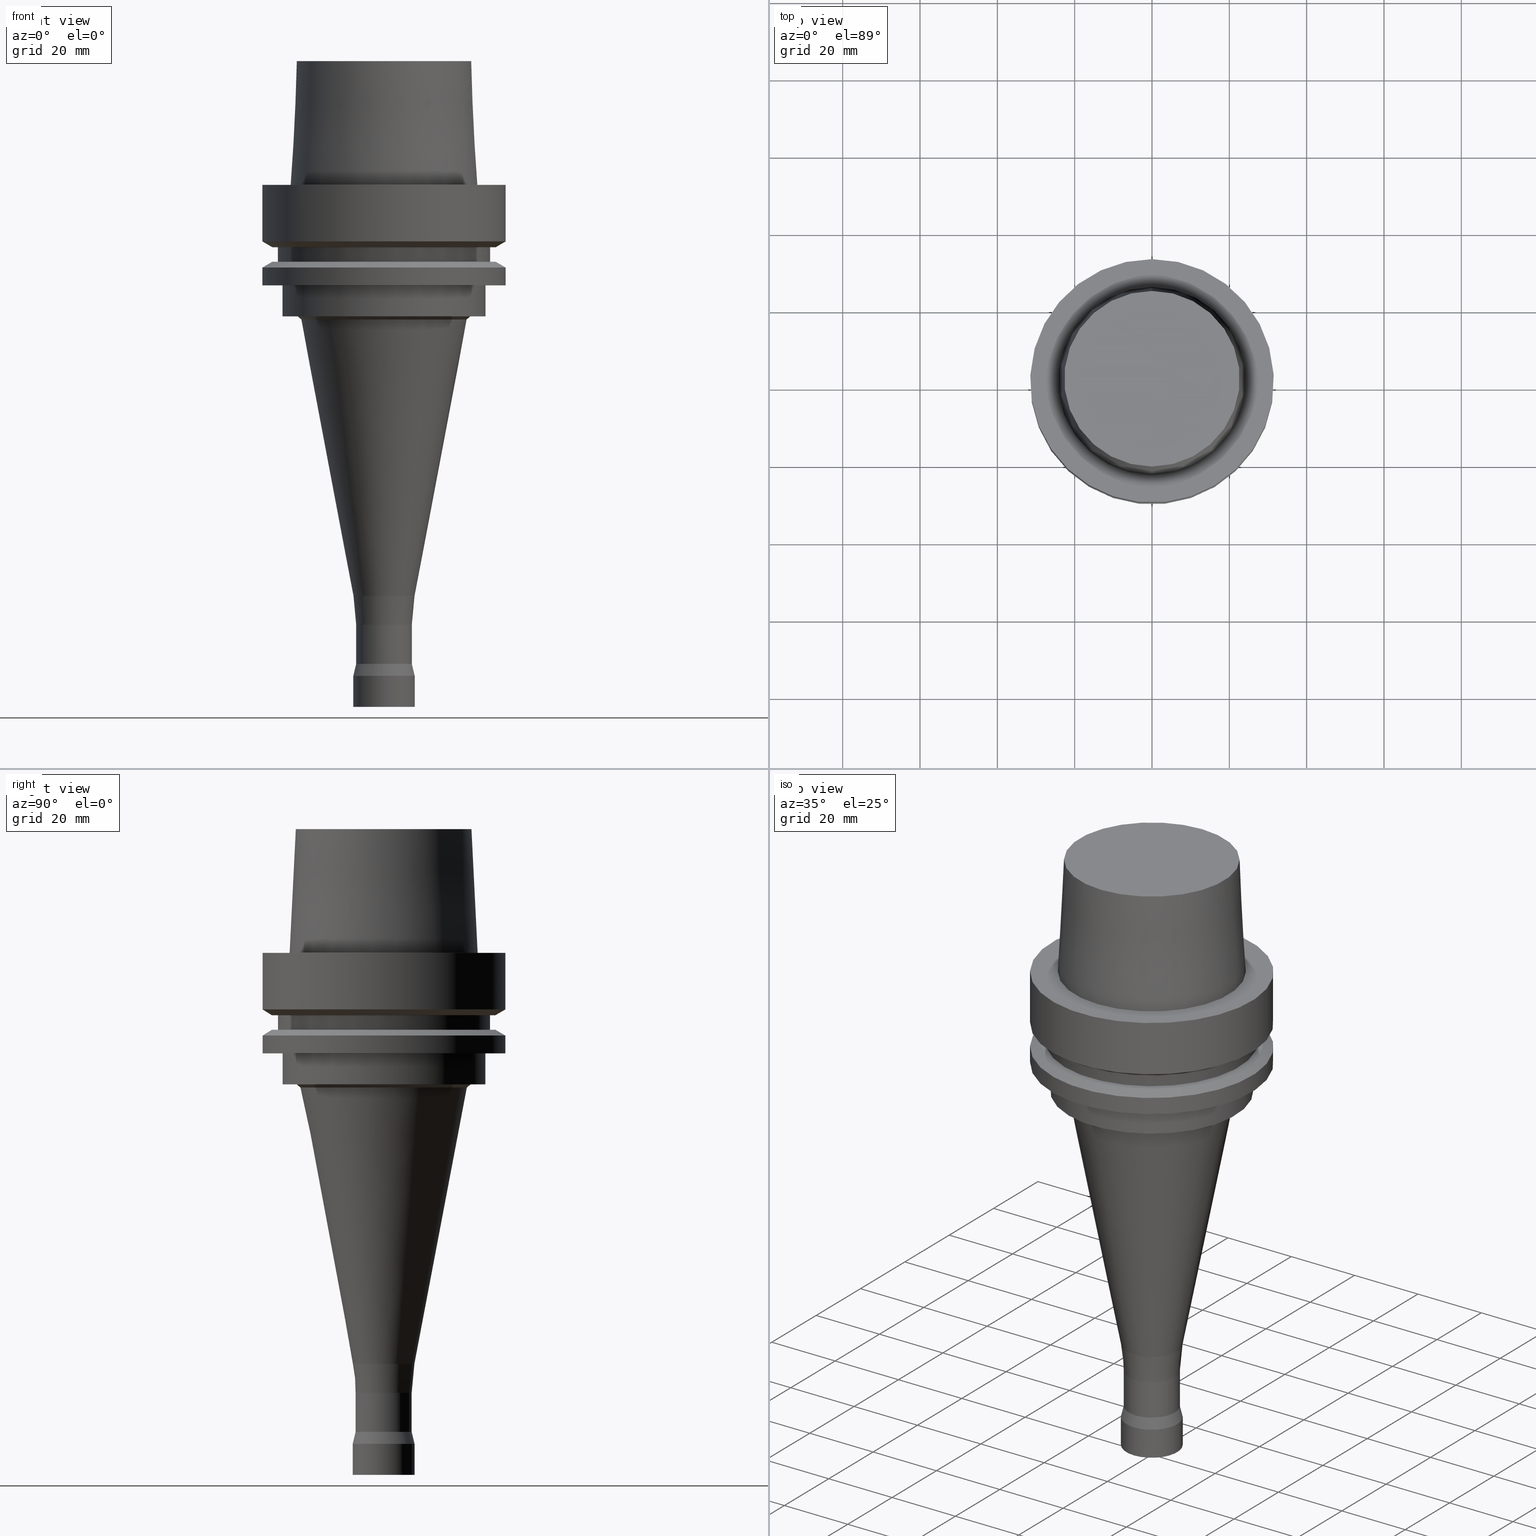
[diagram: canonical four-view strip — front | top / right | iso, engineering-drawing reading convention]
A machine part, canonical four-view strip (front | top / right | iso — engineering-drawing reading convention). The complete STEP part file that produces these views, byte-faithful:
ISO-10303-21;
HEADER;
FILE_DESCRIPTION((''),'1');
FILE_NAME('//Big_tech03/bigt/Translate/21_\X2\8F2A90ED7DDA\X0\-DXF/71_\X2\5207524A5DE55177\X0\/01_\X2\30A830F330C930DF30EB52A05DE5\X0\/02_\X2\30D530EB30AB30C330C830DF30EB\X0\ FCR/HSK/A 63/HSK-A63-FCR16082-135.stp','2012-05-31T01:49:52',(''),(''),'Spatial Interop R18','Kubotek KeyCreator V8.5.1 (14335)',' ');
FILE_SCHEMA(('CONFIG_CONTROL_DESIGN'));
ENDSEC;
DATA;
#1=DESIGN_CONTEXT('',#27,'design');
#2=APPLICATION_PROTOCOL_DEFINITION('INTERNATIONAL STANDARD','config_control_design',1994,#27);
#3=PRODUCT_CATEGORY_RELATIONSHIP('NONE','NONE',#28,#29);
#4=DATE_AND_TIME(#30,#31);
#5=DATE_TIME_ROLE('creation_date');
#6=DATE_TIME_ROLE('classification_date');
#7=PERSON_AND_ORGANIZATION_ROLE('creator');
#8=PERSON_AND_ORGANIZATION_ROLE('design_supplier');
#9=PERSON_AND_ORGANIZATION_ROLE('classification_officer');
#10=PERSON_AND_ORGANIZATION_ROLE('design_owner');
#11=APPROVAL_PERSON_ORGANIZATION(#32,#33,#34);
#12=APPROVAL_DATE_TIME(#4,#33);
#13=CC_DESIGN_APPROVAL(#33,(#35,#36,#37));
#14=CC_DESIGN_DATE_AND_TIME_ASSIGNMENT(#4,#5,(#37));
#15=CC_DESIGN_DATE_AND_TIME_ASSIGNMENT(#4,#6,(#35));
#16=CC_DESIGN_PERSON_AND_ORGANIZATION_ASSIGNMENT(#32,#10,(#38));
#17=CC_DESIGN_PERSON_AND_ORGANIZATION_ASSIGNMENT(#32,#7,(#37));
#18=CC_DESIGN_PERSON_AND_ORGANIZATION_ASSIGNMENT(#32,#7,(#36));
#19=CC_DESIGN_PERSON_AND_ORGANIZATION_ASSIGNMENT(#32,#8,(#36));
#20=CC_DESIGN_SECURITY_CLASSIFICATION(#35,(#36));
#21=CC_DESIGN_PERSON_AND_ORGANIZATION_ASSIGNMENT(#32,#9,(#35));
#22=SHAPE_DEFINITION_REPRESENTATION(#39,#40);
#23= (GEOMETRIC_REPRESENTATION_CONTEXT(3)GLOBAL_UNCERTAINTY_ASSIGNED_CONTEXT((#43))GLOBAL_UNIT_ASSIGNED_CONTEXT((#45,#46,#47))REPRESENTATION_CONTEXT('NONE','WORKSPACE'));
#27=APPLICATION_CONTEXT('CONFIGURATION CONTROLLED 3D DESIGNS OF MECHANICAL PARTS AND ASSEMBLIES');
#28=PRODUCT_CATEGORY('part','NONE');
#29=PRODUCT_RELATED_PRODUCT_CATEGORY('detail',' ',(#38));
#30=CALENDAR_DATE(2012,31,4);
#31=LOCAL_TIME(10,49,52.0,#49);
#32=PERSON_AND_ORGANIZATION(#50,#51);
#33=APPROVAL(#52,'SOLID MODEL');
#34=APPROVAL_ROLE('APPROVED');
#35=SECURITY_CLASSIFICATION('','',#53);
#36=PRODUCT_DEFINITION_FORMATION_WITH_SPECIFIED_SOURCE(' ','NONE',#38,.NOT_KNOWN.);
#37=PRODUCT_DEFINITION('NONE','NONE',#36,#1);
#38=PRODUCT('1','1','PART-1-DESC',(#54));
#39=PRODUCT_DEFINITION_SHAPE('NONE','NONE',#37);
#40=ADVANCED_BREP_SHAPE_REPRESENTATION('1',(#55,#56),#23);
#43=UNCERTAINTY_MEASURE_WITH_UNIT(LENGTH_MEASURE(1.0E-006),#45,'','');
#45= (CONVERSION_BASED_UNIT('MILLIMETRE',#59)LENGTH_UNIT()NAMED_UNIT(#62));
#46= (NAMED_UNIT(#64)PLANE_ANGLE_UNIT()SI_UNIT($,.RADIAN.));
#47= (NAMED_UNIT(#64)SOLID_ANGLE_UNIT()SI_UNIT($,.STERADIAN.));
#49=COORDINATED_UNIVERSAL_TIME_OFFSET(9,0,.AHEAD.);
#50=PERSON('','UNSPECIFIED',$,$,$,$);
#51=ORGANIZATION('UNSPECIFIED','UNSPECIFIED','UNSPECIFIED');
#52=APPROVAL_STATUS('approved');
#53=SECURITY_CLASSIFICATION_LEVEL('unclassified');
#54=MECHANICAL_CONTEXT('',#27,'mechanical');
#55=MANIFOLD_SOLID_BREP('1',#70);
#56=AXIS2_PLACEMENT_3D('',#71,#72,#73);
#59=LENGTH_MEASURE_WITH_UNIT(LENGTH_MEASURE(1.0),#74);
#62=DIMENSIONAL_EXPONENTS(1.0,0.0,0.0,0.0,0.0,0.0,0.0);
#64=DIMENSIONAL_EXPONENTS(0.0,0.0,0.0,0.0,0.0,0.0,0.0);
#70=CLOSED_SHELL('',(#75,#76,#77,#78,#79,#80,#81,#82,#83,#84,#85,#86,#87,#88,#89,#90,#91,#92,#93,#94));
#71=CARTESIAN_POINT('',(0.0,0.0,0.0));
#72=DIRECTION('',(0.0,0.0,1.0));
#73=DIRECTION('',(1.0,0.0,0.0));
#74= (NAMED_UNIT(#62)LENGTH_UNIT()SI_UNIT(.MILLI.,.METRE.));
#75=ADVANCED_FACE('',(#96),#97,.T.);
#76=ADVANCED_FACE('',(#98,#99),#100,.T.);
#77=ADVANCED_FACE('',(#101,#102),#103,.T.);
#78=ADVANCED_FACE('',(#104,#105),#106,.T.);
#79=ADVANCED_FACE('',(#107,#108),#109,.T.);
#80=ADVANCED_FACE('',(#110),#111,.T.);
#81=ADVANCED_FACE('',(#112,#113),#114,.T.);
#82=ADVANCED_FACE('',(#115,#116),#117,.T.);
#83=ADVANCED_FACE('',(#118,#119),#120,.T.);
#84=ADVANCED_FACE('',(#121,#122),#123,.T.);
#85=ADVANCED_FACE('',(#124,#125),#126,.T.);
#86=ADVANCED_FACE('',(#127,#128),#129,.T.);
#87=ADVANCED_FACE('',(#130,#131),#132,.T.);
#88=ADVANCED_FACE('',(#133,#134),#135,.T.);
#89=ADVANCED_FACE('',(#136,#137),#138,.T.);
#90=ADVANCED_FACE('',(#139,#140),#141,.T.);
#91=ADVANCED_FACE('',(#142,#143),#144,.T.);
#92=ADVANCED_FACE('',(#145,#146),#147,.T.);
#93=ADVANCED_FACE('',(#148,#149),#150,.T.);
#94=ADVANCED_FACE('',(#151,#152),#153,.T.);
#96=FACE_OUTER_BOUND('',#154,.T.);
#97=PLANE('',#155);
#98=FACE_BOUND('',#156,.T.);
#99=FACE_BOUND('',#157,.T.);
#100=CYLINDRICAL_SURFACE('',#158,8.0);
#101=FACE_BOUND('',#159,.T.);
#102=FACE_BOUND('',#160,.T.);
#103=CONICAL_SURFACE('',#161,7.60065411,0.0937661424706096);
#104=FACE_BOUND('',#162,.T.);
#105=FACE_BOUND('',#163,.T.);
#106=CYLINDRICAL_SURFACE('',#164,7.25);
#107=FACE_BOUND('',#165,.T.);
#108=FACE_BOUND('',#166,.T.);
#109=CONICAL_SURFACE('',#167,7.625,0.236426045442767);
#110=FACE_OUTER_BOUND('',#168,.T.);
#111=PLANE('',#169);
#112=FACE_BOUND('',#170,.T.);
#113=FACE_BOUND('',#171,.T.);
#114=CONICAL_SURFACE('',#172,23.5149999985447,0.0499583958256321);
#115=FACE_OUTER_BOUND('',#173,.T.);
#116=FACE_BOUND('',#174,.T.);
#117=PLANE('',#175);
#118=FACE_BOUND('',#176,.T.);
#119=FACE_BOUND('',#177,.T.);
#120=CYLINDRICAL_SURFACE('',#178,31.5);
#121=FACE_BOUND('',#179,.T.);
#122=FACE_BOUND('',#180,.T.);
#123=CONICAL_SURFACE('',#181,30.19879763,1.04719755326565);
#124=FACE_BOUND('',#182,.T.);
#125=FACE_OUTER_BOUND('',#183,.T.);
#126=PLANE('',#184);
#127=FACE_BOUND('',#185,.T.);
#128=FACE_BOUND('',#186,.T.);
#129=CYLINDRICAL_SURFACE('',#187,27.5);
#130=FACE_OUTER_BOUND('',#188,.T.);
#131=FACE_BOUND('',#189,.T.);
#132=PLANE('',#190);
#133=FACE_BOUND('',#191,.T.);
#134=FACE_BOUND('',#192,.T.);
#135=CONICAL_SURFACE('',#193,30.19879763,1.04719755326565);
#136=FACE_BOUND('',#194,.T.);
#137=FACE_BOUND('',#195,.T.);
#138=CYLINDRICAL_SURFACE('',#196,31.5);
#139=FACE_BOUND('',#197,.T.);
#140=FACE_OUTER_BOUND('',#198,.T.);
#141=PLANE('',#199);
#142=FACE_BOUND('',#200,.T.);
#143=FACE_BOUND('',#201,.T.);
#144=CYLINDRICAL_SURFACE('',#202,26.3);
#145=FACE_BOUND('',#203,.T.);
#146=FACE_OUTER_BOUND('',#204,.T.);
#147=PLANE('',#205);
#148=FACE_BOUND('',#206,.T.);
#149=FACE_BOUND('',#207,.T.);
#150=CONICAL_SURFACE('',#208,22.008766355,0.879164306144341);
#151=FACE_BOUND('',#209,.T.);
#152=FACE_BOUND('',#210,.T.);
#153=CONICAL_SURFACE('',#211,14.734420465,0.187532285828949);
#154=EDGE_LOOP('',(#212));
#155=AXIS2_PLACEMENT_3D('',#213,#214,#215);
#156=EDGE_LOOP('',(#216));
#157=EDGE_LOOP('',(#217));
#158=AXIS2_PLACEMENT_3D('',#218,#219,#220);
#159=EDGE_LOOP('',(#221));
#160=EDGE_LOOP('',(#222));
#161=AXIS2_PLACEMENT_3D('',#223,#224,#225);
#162=EDGE_LOOP('',(#226));
#163=EDGE_LOOP('',(#227));
#164=AXIS2_PLACEMENT_3D('',#228,#229,#230);
#165=EDGE_LOOP('',(#231));
#166=EDGE_LOOP('',(#232));
#167=AXIS2_PLACEMENT_3D('',#233,#234,#235);
#168=EDGE_LOOP('',(#236));
#169=AXIS2_PLACEMENT_3D('',#237,#238,#239);
#170=EDGE_LOOP('',(#240));
#171=EDGE_LOOP('',(#241));
#172=AXIS2_PLACEMENT_3D('',#242,#243,#244);
#173=EDGE_LOOP('',(#245));
#174=EDGE_LOOP('',(#246));
#175=AXIS2_PLACEMENT_3D('',#247,#248,#249);
#176=EDGE_LOOP('',(#250));
#177=EDGE_LOOP('',(#251));
#178=AXIS2_PLACEMENT_3D('',#252,#253,#254);
#179=EDGE_LOOP('',(#255));
#180=EDGE_LOOP('',(#256));
#181=AXIS2_PLACEMENT_3D('',#257,#258,#259);
#182=EDGE_LOOP('',(#260));
#183=EDGE_LOOP('',(#261));
#184=AXIS2_PLACEMENT_3D('',#262,#263,#264);
#185=EDGE_LOOP('',(#265));
#186=EDGE_LOOP('',(#266));
#187=AXIS2_PLACEMENT_3D('',#267,#268,#269);
#188=EDGE_LOOP('',(#270));
#189=EDGE_LOOP('',(#271));
#190=AXIS2_PLACEMENT_3D('',#272,#273,#274);
#191=EDGE_LOOP('',(#275));
#192=EDGE_LOOP('',(#276));
#193=AXIS2_PLACEMENT_3D('',#277,#278,#279);
#194=EDGE_LOOP('',(#280));
#195=EDGE_LOOP('',(#281));
#196=AXIS2_PLACEMENT_3D('',#282,#283,#284);
#197=EDGE_LOOP('',(#285));
#198=EDGE_LOOP('',(#286));
#199=AXIS2_PLACEMENT_3D('',#287,#288,#289);
#200=EDGE_LOOP('',(#290));
#201=EDGE_LOOP('',(#291));
#202=AXIS2_PLACEMENT_3D('',#292,#293,#294);
#203=EDGE_LOOP('',(#295));
#204=EDGE_LOOP('',(#296));
#205=AXIS2_PLACEMENT_3D('',#297,#298,#299);
#206=EDGE_LOOP('',(#300));
#207=EDGE_LOOP('',(#301));
#208=AXIS2_PLACEMENT_3D('',#302,#303,#304);
#209=EDGE_LOOP('',(#305));
#210=EDGE_LOOP('',(#306));
#211=AXIS2_PLACEMENT_3D('',#307,#308,#309);
#212=ORIENTED_EDGE('',*,*,#310,.T.);
#213=CARTESIAN_POINT('',(8.26636589424463E-015,4.00000000000002,-135.0));
#214=DIRECTION('',(6.12323399573677E-017,1.22464679914735E-016,-1.0));
#215=DIRECTION('',(-1.23259516440783E-032,1.0,1.22464679914735E-016));
#216=ORIENTED_EDGE('',*,*,#310,.F.);
#217=ORIENTED_EDGE('',*,*,#311,.T.);
#218=CARTESIAN_POINT('',(8.02143653441516E-015,1.60428730688303E-014,-131.0));
#219=DIRECTION('',(-6.12323399573677E-017,-1.22464679914735E-016,1.0));
#220=DIRECTION('',(-1.23259516440783E-032,1.0,1.22464679914735E-016));
#221=ORIENTED_EDGE('',*,*,#312,.F.);
#222=ORIENTED_EDGE('',*,*,#313,.T.);
#223=CARTESIAN_POINT('',(6.7375766039747E-015,1.34751532079494E-014,-110.03297618));
#224=DIRECTION('',(-6.12323399573677E-017,-1.22464679914735E-016,1.0));
#225=DIRECTION('',(-1.23259516440783E-032,1.0,1.22464679914735E-016));
#226=ORIENTED_EDGE('',*,*,#314,.F.);
#227=ORIENTED_EDGE('',*,*,#312,.T.);
#228=CARTESIAN_POINT('',(7.27589498844439E-015,1.45517899768888E-014,-118.824382565));
#229=DIRECTION('',(-6.12323399573677E-017,-1.22464679914735E-016,1.0));
#230=DIRECTION('',(-1.23259516440783E-032,1.0,1.22464679914735E-016));
#231=ORIENTED_EDGE('',*,*,#311,.F.);
#232=ORIENTED_EDGE('',*,*,#314,.T.);
#233=CARTESIAN_POINT('',(7.68120175064703E-015,1.53624035012941E-014,-125.44354431));
#234=DIRECTION('',(6.12323399573677E-017,1.22464679914735E-016,-1.0));
#235=DIRECTION('',(-1.23259516440783E-032,1.0,1.22464679914735E-016));
#236=ORIENTED_EDGE('',*,*,#315,.F.);
#237=CARTESIAN_POINT('',(-1.95943487863577E-015,11.3574999984407,32.0));
#238=DIRECTION('',(-6.12323399573677E-017,-1.22464679914735E-016,1.0));
#239=DIRECTION('',(1.23259516440783E-032,-1.0,-1.22464679914735E-016));
#240=ORIENTED_EDGE('',*,*,#316,.F.);
#241=ORIENTED_EDGE('',*,*,#315,.T.);
#242=CARTESIAN_POINT('',(-9.79717439317883E-016,-1.95943487863576E-015,16.0));
#243=DIRECTION('',(6.12323399573676E-017,1.22464679914735E-016,-1.0));
#244=DIRECTION('',(-1.23259516440783E-032,1.0,1.22464679914735E-016));
#245=ORIENTED_EDGE('',*,*,#317,.F.);
#246=ORIENTED_EDGE('',*,*,#316,.T.);
#247=CARTESIAN_POINT('',(-3.43986495508397E-031,27.907500000104,3.41768305473321E-015));
#248=DIRECTION('',(-6.12323399573677E-017,-1.22464679914735E-016,1.0));
#249=DIRECTION('',(1.23259516440783E-032,-1.0,-1.22464679914735E-016));
#250=ORIENTED_EDGE('',*,*,#318,.F.);
#251=ORIENTED_EDGE('',*,*,#317,.T.);
#252=CARTESIAN_POINT('',(4.47684973986342E-016,8.95369947972685E-016,-7.311250465));
#253=DIRECTION('',(-6.12323399573677E-017,-1.22464679914735E-016,1.0));
#254=DIRECTION('',(-1.23259516440783E-032,1.0,1.22464679914735E-016));
#255=ORIENTED_EDGE('',*,*,#319,.F.);
#256=ORIENTED_EDGE('',*,*,#318,.T.);
#257=CARTESIAN_POINT('',(9.41370714892619E-016,1.88274142978524E-015,-15.373750465));
#258=DIRECTION('',(-6.12323399573677E-017,-1.22464679914735E-016,1.0));
#259=DIRECTION('',(-1.23259516440783E-032,1.0,1.22464679914735E-016));
#260=ORIENTED_EDGE('',*,*,#320,.F.);
#261=ORIENTED_EDGE('',*,*,#319,.T.);
#262=CARTESIAN_POINT('',(9.87371481812553E-016,28.19879763,-16.125));
#263=DIRECTION('',(6.12323399573677E-017,1.22464679914735E-016,-1.0));
#264=DIRECTION('',(-1.23259516440783E-032,1.0,1.22464679914735E-016));
#265=ORIENTED_EDGE('',*,*,#321,.F.);
#266=ORIENTED_EDGE('',*,*,#320,.T.);
#267=CARTESIAN_POINT('',(1.10218211923262E-015,2.20436423846524E-015,-18.0));
#268=DIRECTION('',(-6.12323399573677E-017,-1.22464679914735E-016,1.0));
#269=DIRECTION('',(-1.23259516440783E-032,1.0,1.22464679914735E-016));
#270=ORIENTED_EDGE('',*,*,#322,.F.);
#271=ORIENTED_EDGE('',*,*,#321,.T.);
#272=CARTESIAN_POINT('',(1.21699275665268E-015,28.19879763,-19.875));
#273=DIRECTION('',(-6.12323399573677E-017,-1.22464679914735E-016,1.0));
#274=DIRECTION('',(1.23259516440783E-032,-1.0,-1.22464679914735E-016));
#275=ORIENTED_EDGE('',*,*,#323,.F.);
#276=ORIENTED_EDGE('',*,*,#322,.T.);
#277=CARTESIAN_POINT('',(1.26299352357262E-015,2.52598704714523E-015,-20.626249535));
#278=DIRECTION('',(6.12323399573677E-017,1.22464679914735E-016,-1.0));
#279=DIRECTION('',(-1.23259516440783E-032,1.0,1.22464679914735E-016));
#280=ORIENTED_EDGE('',*,*,#324,.F.);
#281=ORIENTED_EDGE('',*,*,#323,.T.);
#282=CARTESIAN_POINT('',(1.45051756469206E-015,2.90103512938411E-015,-23.688749535));
#283=DIRECTION('',(-6.12323399573677E-017,-1.22464679914735E-016,1.0));
#284=DIRECTION('',(-1.23259516440783E-032,1.0,1.22464679914735E-016));
#285=ORIENTED_EDGE('',*,*,#325,.F.);
#286=ORIENTED_EDGE('',*,*,#324,.T.);
#287=CARTESIAN_POINT('',(1.59204083889156E-015,28.9,-26.0));
#288=DIRECTION('',(6.12323399573677E-017,1.22464679914735E-016,-1.0));
#289=DIRECTION('',(-1.23259516440783E-032,1.0,1.22464679914735E-016));
#290=ORIENTED_EDGE('',*,*,#326,.F.);
#291=ORIENTED_EDGE('',*,*,#325,.T.);
#292=CARTESIAN_POINT('',(1.83697019872103E-015,3.67394039744206E-015,-30.0));
#293=DIRECTION('',(-6.12323399573677E-017,-1.22464679914735E-016,1.0));
#294=DIRECTION('',(-1.23259516440783E-032,1.0,1.22464679914735E-016));
#295=ORIENTED_EDGE('',*,*,#327,.F.);
#296=ORIENTED_EDGE('',*,*,#326,.T.);
#297=CARTESIAN_POINT('',(2.0818995585505E-015,24.4,-34.0));
#298=DIRECTION('',(6.12323399573677E-017,1.22464679914735E-016,-1.0));
#299=DIRECTION('',(-1.23259516440783E-032,1.0,1.22464679914735E-016));
#300=ORIENTED_EDGE('',*,*,#328,.F.);
#301=ORIENTED_EDGE('',*,*,#327,.T.);
#302=CARTESIAN_POINT('',(2.10680780226689E-015,4.21361560453377E-015,-34.40678249));
#303=DIRECTION('',(-6.12323399573677E-017,-1.22464679914735E-016,1.0));
#304=DIRECTION('',(-1.23259516440783E-032,1.0,1.22464679914735E-016));
#305=ORIENTED_EDGE('',*,*,#313,.F.);
#306=ORIENTED_EDGE('',*,*,#328,.T.);
#307=CARTESIAN_POINT('',(4.32048780187613E-015,8.64097560375226E-015,-70.558920415));
#308=DIRECTION('',(-6.12323399573677E-017,-1.22464679914735E-016,1.0));
#309=DIRECTION('',(-1.23259516440783E-032,1.0,1.22464679914735E-016));
#310=EDGE_CURVE('',#329,#329,#330,.T.);
#311=EDGE_CURVE('',#331,#331,#332,.T.);
#312=EDGE_CURVE('',#333,#333,#334,.T.);
#313=EDGE_CURVE('',#335,#335,#336,.T.);
#314=EDGE_CURVE('',#337,#337,#338,.T.);
#315=EDGE_CURVE('',#339,#339,#340,.T.);
#316=EDGE_CURVE('',#341,#341,#342,.T.);
#317=EDGE_CURVE('',#343,#343,#344,.T.);
#318=EDGE_CURVE('',#345,#345,#346,.T.);
#319=EDGE_CURVE('',#347,#347,#348,.T.);
#320=EDGE_CURVE('',#349,#349,#350,.T.);
#321=EDGE_CURVE('',#351,#351,#352,.T.);
#322=EDGE_CURVE('',#353,#353,#354,.T.);
#323=EDGE_CURVE('',#355,#355,#356,.T.);
#324=EDGE_CURVE('',#357,#357,#358,.T.);
#325=EDGE_CURVE('',#359,#359,#360,.T.);
#326=EDGE_CURVE('',#361,#361,#362,.T.);
#327=EDGE_CURVE('',#363,#363,#364,.T.);
#328=EDGE_CURVE('',#365,#365,#366,.T.);
#329=VERTEX_POINT('',#367);
#330=CIRCLE('',#368,8.0);
#331=VERTEX_POINT('',#369);
#332=CIRCLE('',#370,8.0);
#333=VERTEX_POINT('',#371);
#334=CIRCLE('',#372,7.25);
#335=VERTEX_POINT('',#373);
#336=CIRCLE('',#374,7.95130822);
#337=VERTEX_POINT('',#375);
#338=CIRCLE('',#376,7.25);
#339=VERTEX_POINT('',#377);
#340=CIRCLE('',#378,22.7149999968815);
#341=VERTEX_POINT('',#379);
#342=CIRCLE('',#380,24.3150000002079);
#343=VERTEX_POINT('',#381);
#344=CIRCLE('',#382,31.5);
#345=VERTEX_POINT('',#383);
#346=CIRCLE('',#384,31.5);
#347=VERTEX_POINT('',#385);
#348=CIRCLE('',#386,28.89759526);
#349=VERTEX_POINT('',#387);
#350=CIRCLE('',#388,27.5);
#351=VERTEX_POINT('',#389);
#352=CIRCLE('',#390,27.5);
#353=VERTEX_POINT('',#391);
#354=CIRCLE('',#392,28.89759526);
#355=VERTEX_POINT('',#393);
#356=CIRCLE('',#394,31.5);
#357=VERTEX_POINT('',#395);
#358=CIRCLE('',#396,31.5);
#359=VERTEX_POINT('',#397);
#360=CIRCLE('',#398,26.3);
#361=VERTEX_POINT('',#399);
#362=CIRCLE('',#400,26.3);
#363=VERTEX_POINT('',#401);
#364=CIRCLE('',#402,22.5);
#365=VERTEX_POINT('',#403);
#366=CIRCLE('',#404,21.51753271);
#367=CARTESIAN_POINT('',(8.26636589424463E-015,8.00000000000002,-135.0));
#368=AXIS2_PLACEMENT_3D('',#405,#406,#407);
#369=CARTESIAN_POINT('',(7.77650717458569E-015,8.00000000000002,-127.0));
#370=AXIS2_PLACEMENT_3D('',#408,#409,#410);
#371=CARTESIAN_POINT('',(6.96589365018041E-015,7.25000000000001,-113.76167651));
#372=AXIS2_PLACEMENT_3D('',#411,#412,#413);
#373=CARTESIAN_POINT('',(6.50925955776899E-015,7.95130822000001,-106.30427585));
#374=AXIS2_PLACEMENT_3D('',#414,#415,#416);
#375=CARTESIAN_POINT('',(7.58589632670837E-015,7.25000000000002,-123.88708862));
#376=AXIS2_PLACEMENT_3D('',#417,#418,#419);
#377=CARTESIAN_POINT('',(-1.95943487863577E-015,22.7149999968815,32.0));
#378=AXIS2_PLACEMENT_3D('',#420,#421,#422);
#379=CARTESIAN_POINT('',(-2.99705514228327E-031,24.3150000002079,2.97772869215225E-015));
#380=AXIS2_PLACEMENT_3D('',#423,#424,#425);
#381=CARTESIAN_POINT('',(-3.88267476788467E-031,31.5,3.85763741731416E-015));
#382=AXIS2_PLACEMENT_3D('',#426,#427,#428);
#383=CARTESIAN_POINT('',(8.95369947972684E-016,31.5,-14.62250093));
#384=AXIS2_PLACEMENT_3D('',#429,#430,#431);
#385=CARTESIAN_POINT('',(9.87371481812553E-016,28.89759526,-16.125));
#386=AXIS2_PLACEMENT_3D('',#432,#433,#434);
#387=CARTESIAN_POINT('',(9.87371481812553E-016,27.5,-16.125));
#388=AXIS2_PLACEMENT_3D('',#435,#436,#437);
#389=CARTESIAN_POINT('',(1.21699275665268E-015,27.5,-19.875));
#390=AXIS2_PLACEMENT_3D('',#438,#439,#440);
#391=CARTESIAN_POINT('',(1.21699275665268E-015,28.89759526,-19.875));
#392=AXIS2_PLACEMENT_3D('',#441,#442,#443);
#393=CARTESIAN_POINT('',(1.30899429049255E-015,31.5,-21.37749907));
#394=AXIS2_PLACEMENT_3D('',#444,#445,#446);
#395=CARTESIAN_POINT('',(1.59204083889156E-015,31.5,-26.0));
#396=AXIS2_PLACEMENT_3D('',#447,#448,#449);
#397=CARTESIAN_POINT('',(1.59204083889156E-015,26.3,-26.0));
#398=AXIS2_PLACEMENT_3D('',#450,#451,#452);
#399=CARTESIAN_POINT('',(2.0818995585505E-015,26.3,-34.0));
#400=AXIS2_PLACEMENT_3D('',#453,#454,#455);
#401=CARTESIAN_POINT('',(2.0818995585505E-015,22.5,-34.0));
#402=AXIS2_PLACEMENT_3D('',#456,#457,#458);
#403=CARTESIAN_POINT('',(2.13171604598327E-015,21.51753271,-34.81356498));
#404=AXIS2_PLACEMENT_3D('',#459,#460,#461);
#405=CARTESIAN_POINT('',(8.26636589424463E-015,1.65327317884893E-014,-135.0));
#406=DIRECTION('',(6.12323399573677E-017,1.22464679914735E-016,-1.0));
#407=DIRECTION('',(-1.23259516440783E-032,1.0,1.22464679914735E-016));
#408=CARTESIAN_POINT('',(7.77650717458569E-015,1.55530143491714E-014,-127.0));
#409=DIRECTION('',(6.12323399573677E-017,1.22464679914735E-016,-1.0));
#410=DIRECTION('',(-1.23259516440783E-032,1.0,1.22464679914735E-016));
#411=CARTESIAN_POINT('',(6.96589365018041E-015,1.39317873003608E-014,-113.76167651));
#412=DIRECTION('',(6.12323399573677E-017,1.22464679914735E-016,-1.0));
#413=DIRECTION('',(-1.23259516440783E-032,1.0,1.22464679914735E-016));
#414=CARTESIAN_POINT('',(6.50925955776899E-015,1.3018519115538E-014,-106.30427585));
#415=DIRECTION('',(6.12323399573677E-017,1.22464679914735E-016,-1.0));
#416=DIRECTION('',(-1.23259516440783E-032,1.0,1.22464679914735E-016));
#417=CARTESIAN_POINT('',(7.58589632670837E-015,1.51717926534167E-014,-123.88708862));
#418=DIRECTION('',(6.12323399573677E-017,1.22464679914735E-016,-1.0));
#419=DIRECTION('',(-1.23259516440783E-032,1.0,1.22464679914735E-016));
#420=CARTESIAN_POINT('',(-1.95943487863577E-015,-3.91886975727153E-015,32.0));
#421=DIRECTION('',(6.12323399573677E-017,1.22464679914735E-016,-1.0));
#422=DIRECTION('',(-1.23259516440783E-032,1.0,1.22464679914735E-016));
#423=CARTESIAN_POINT('',(0.0,0.0,0.0));
#424=DIRECTION('',(6.12323399573677E-017,1.22464679914735E-016,-1.0));
#425=DIRECTION('',(-1.23259516440783E-032,1.0,1.22464679914735E-016));
#426=CARTESIAN_POINT('',(0.0,0.0,0.0));
#427=DIRECTION('',(6.12323399573677E-017,1.22464679914735E-016,-1.0));
#428=DIRECTION('',(-1.23259516440783E-032,1.0,1.22464679914735E-016));
#429=CARTESIAN_POINT('',(8.95369947972685E-016,1.79073989594537E-015,-14.62250093));
#430=DIRECTION('',(6.12323399573677E-017,1.22464679914735E-016,-1.0));
#431=DIRECTION('',(-1.23259516440783E-032,1.0,1.22464679914735E-016));
#432=CARTESIAN_POINT('',(9.87371481812554E-016,1.97474296362511E-015,-16.125));
#433=DIRECTION('',(6.12323399573677E-017,1.22464679914735E-016,-1.0));
#434=DIRECTION('',(-1.23259516440783E-032,1.0,1.22464679914735E-016));
#435=CARTESIAN_POINT('',(9.87371481812554E-016,1.97474296362511E-015,-16.125));
#436=DIRECTION('',(6.12323399573677E-017,1.22464679914735E-016,-1.0));
#437=DIRECTION('',(-1.23259516440783E-032,1.0,1.22464679914735E-016));
#438=CARTESIAN_POINT('',(1.21699275665268E-015,2.43398551330536E-015,-19.875));
#439=DIRECTION('',(6.12323399573677E-017,1.22464679914735E-016,-1.0));
#440=DIRECTION('',(-1.23259516440783E-032,1.0,1.22464679914735E-016));
#441=CARTESIAN_POINT('',(1.21699275665268E-015,2.43398551330536E-015,-19.875));
#442=DIRECTION('',(6.12323399573677E-017,1.22464679914735E-016,-1.0));
#443=DIRECTION('',(-1.23259516440783E-032,1.0,1.22464679914735E-016));
#444=CARTESIAN_POINT('',(1.30899429049255E-015,2.6179885809851E-015,-21.37749907));
#445=DIRECTION('',(6.12323399573677E-017,1.22464679914735E-016,-1.0));
#446=DIRECTION('',(-1.23259516440783E-032,1.0,1.22464679914735E-016));
#447=CARTESIAN_POINT('',(1.59204083889156E-015,3.18408167778312E-015,-26.0));
#448=DIRECTION('',(6.12323399573677E-017,1.22464679914735E-016,-1.0));
#449=DIRECTION('',(-1.23259516440783E-032,1.0,1.22464679914735E-016));
#450=CARTESIAN_POINT('',(1.59204083889156E-015,3.18408167778312E-015,-26.0));
#451=DIRECTION('',(6.12323399573677E-017,1.22464679914735E-016,-1.0));
#452=DIRECTION('',(-1.23259516440783E-032,1.0,1.22464679914735E-016));
#453=CARTESIAN_POINT('',(2.0818995585505E-015,4.163799117101E-015,-34.0));
#454=DIRECTION('',(6.12323399573677E-017,1.22464679914735E-016,-1.0));
#455=DIRECTION('',(-1.23259516440783E-032,1.0,1.22464679914735E-016));
#456=CARTESIAN_POINT('',(2.0818995585505E-015,4.163799117101E-015,-34.0));
#457=DIRECTION('',(6.12323399573677E-017,1.22464679914735E-016,-1.0));
#458=DIRECTION('',(-1.23259516440783E-032,1.0,1.22464679914735E-016));
#459=CARTESIAN_POINT('',(2.13171604598327E-015,4.26343209196654E-015,-34.81356498));
#460=DIRECTION('',(6.12323399573677E-017,1.22464679914735E-016,-1.0));
#461=DIRECTION('',(-1.23259516440783E-032,1.0,1.22464679914735E-016));
ENDSEC;
END-ISO-10303-21;
